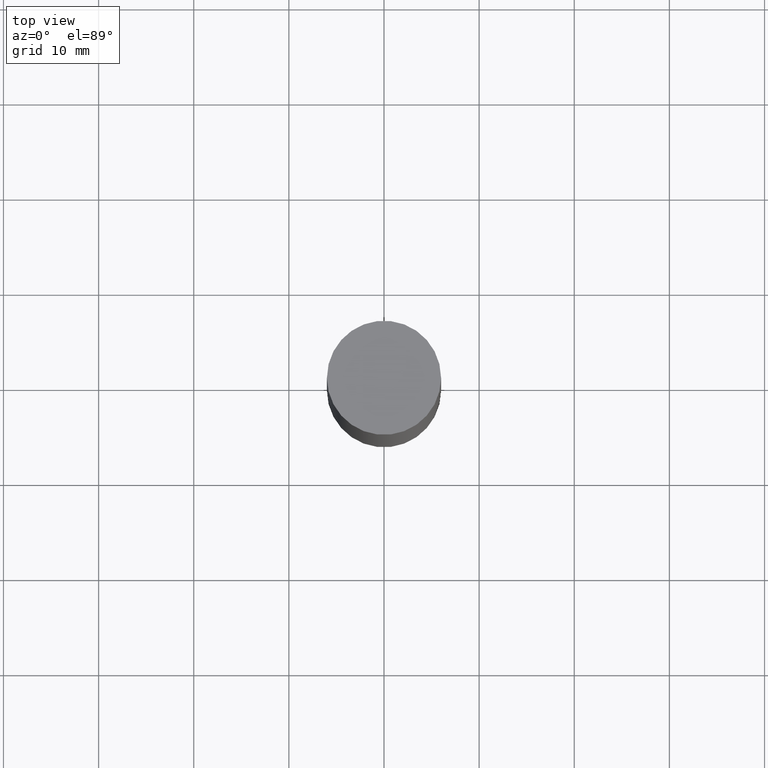
[diagram: clean part render]
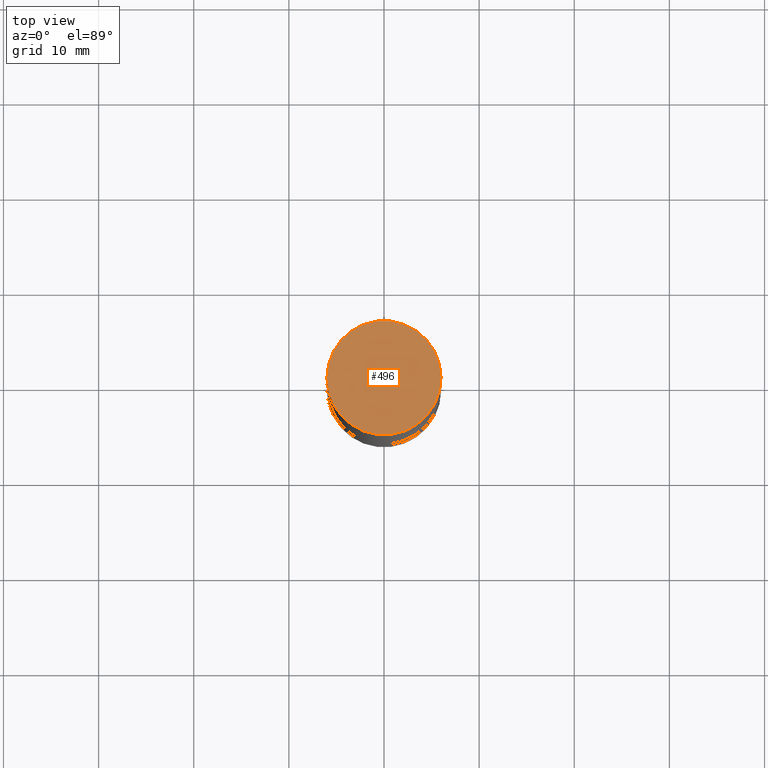
[diagram: same view with one face highlighted and labeled with its STEP entity id]
A machine part, top view. The second image highlights one B-rep face of the part: STEP entity #496.
In plain terms, the highlighted planar face has unit normal (0, 0, 1).
Its self-contained STEP definition (entity closure, byte-faithful):
#2 = AXIS2_PLACEMENT_3D ( 'NONE', #67, #650, #25 ) ;
#6 = VERTEX_POINT ( 'NONE', #495 ) ;
#17 = DIRECTION ( 'NONE',  ( 2.438088387897959769E-29, 3.492890411551753071E-15, 1.000000000000000000 ) ) ;
#25 = DIRECTION ( 'NONE',  ( 1.000000000000000000, -6.982962677686266711E-15, 0.000000000000000000 ) ) ;
#67 = CARTESIAN_POINT ( 'NONE',  ( 7.220980290903470182E-29, 2.080354946989631982E-18, 5.463695987328526437E-16 ) ) ;
#89 = EDGE_CURVE ( 'NONE', #358, #6, #205, .T. ) ;
#117 = AXIS2_PLACEMENT_3D ( 'NONE', #228, #17, #118 ) ;
#118 = DIRECTION ( 'NONE',  ( -1.000000000000000000, 6.982962677686265922E-15, -9.839502134516470631E-33 ) ) ;
#128 = EDGE_LOOP ( 'NONE', ( #185, #208 ) ) ;
#159 = DIRECTION ( 'NONE',  ( 2.445468806185136597E-29, 3.492890411551752677E-15, 1.000000000000000000 ) ) ;
#185 = ORIENTED_EDGE ( 'NONE', *, *, #89, .T. ) ;
#205 = CIRCLE ( 'NONE', #2, 0.2361999999999999933 ) ;
#208 = ORIENTED_EDGE ( 'NONE', *, *, #361, .T. ) ;
#215 = CARTESIAN_POINT ( 'NONE',  ( 0.2361999999999999933, -1.647295429522506636E-15, 5.463695987328526437E-16 ) ) ;
#228 = CARTESIAN_POINT ( 'NONE',  ( 1.649375784469568312E-15, 0.2361999999999999933, 0.000000000000000000 ) ) ;
#358 = VERTEX_POINT ( 'NONE', #215 ) ;
#361 = EDGE_CURVE ( 'NONE', #6, #358, #563, .T. ) ;
#376 = DIRECTION ( 'NONE',  ( 1.000000000000000000, -6.982962677686266711E-15, 0.000000000000000000 ) ) ;
#387 = PLANE ( 'NONE',  #117 ) ;
#495 = CARTESIAN_POINT ( 'NONE',  ( -0.2361999999999999933, 5.224441469024009929E-16, 5.463695987328566866E-16 ) ) ;
#496 = ADVANCED_FACE ( 'NONE', ( #542 ), #387, .T. ) ;
#542 = FACE_OUTER_BOUND ( 'NONE', #128, .T. ) ;
#563 = CIRCLE ( 'NONE', #636, 0.2361999999999999933 ) ;
#636 = AXIS2_PLACEMENT_3D ( 'NONE', #637, #159, #376 ) ;
#637 = CARTESIAN_POINT ( 'NONE',  ( 7.220980290903470182E-29, 2.080354946989631982E-18, 5.463695987328526437E-16 ) ) ;
#650 = DIRECTION ( 'NONE',  ( 2.445468806185136597E-29, 3.492890411551752677E-15, 1.000000000000000000 ) ) ;